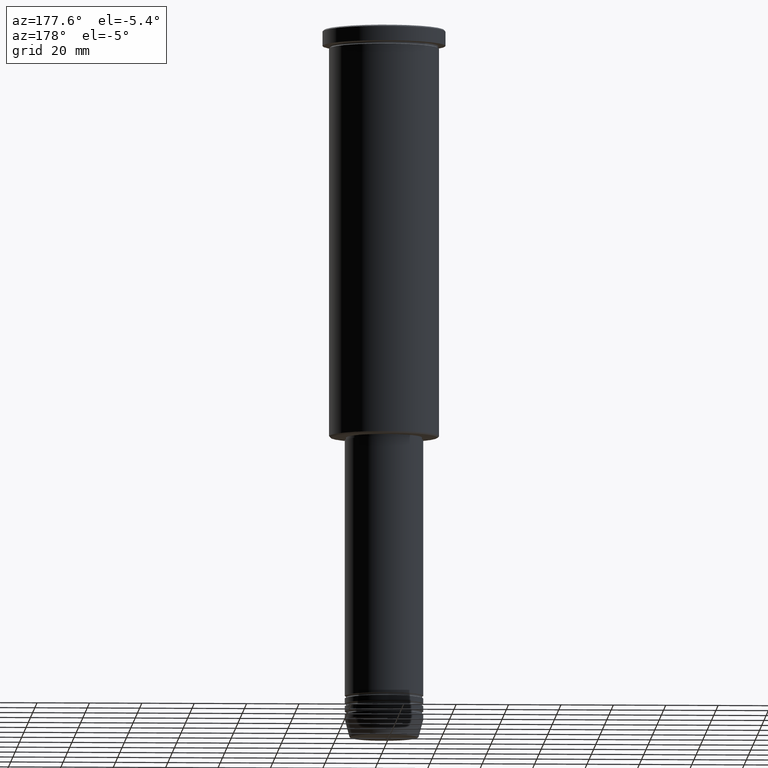
[diagram: clean part render]
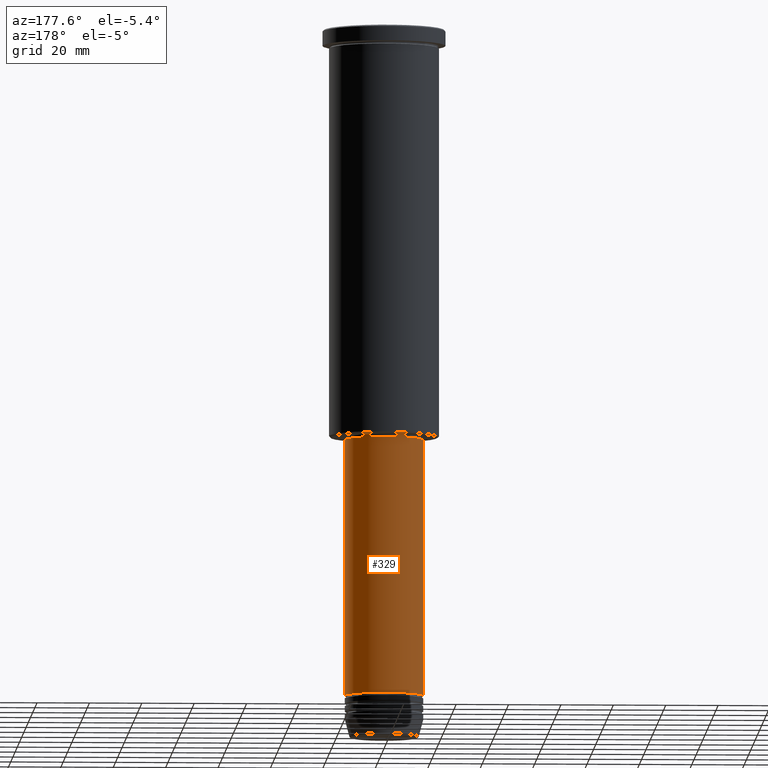
[diagram: same view with one face highlighted and labeled with its STEP entity id]
A machine part, auxiliary view. The second image highlights one B-rep face of the part: STEP entity #329.
In plain terms, the highlighted cylindrical surface (partial cylindrical patch) has radius 15 mm, axis along (-0, -0, 1).
Its self-contained STEP definition (entity closure, byte-faithful):
#17 = DIRECTION ( 'NONE',  ( -0.000000000000000000, -0.000000000000000000, 1.000000000000000000 ) ) ;
#42 = EDGE_CURVE ( 'NONE', #95, #1170, #251, .T. ) ;
#82 = EDGE_CURVE ( 'NONE', #1170, #1074, #955, .T. ) ;
#93 = DIRECTION ( 'NONE',  ( 1.000000000000000000, 0.000000000000000000, 0.000000000000000000 ) ) ;
#95 = VERTEX_POINT ( 'NONE', #274 ) ;
#156 = EDGE_CURVE ( 'NONE', #95, #519, #583, .T. ) ;
#211 = AXIS2_PLACEMENT_3D ( 'NONE', #905, #454, #830 ) ;
#251 = LINE ( 'NONE', #831, #430 ) ;
#274 = CARTESIAN_POINT ( 'NONE',  ( 15.00000000000000000, 0.000000000000000000, -255.0000000000000000 ) ) ;
#279 = ORIENTED_EDGE ( 'NONE', *, *, #42, .F. ) ;
#329 = ADVANCED_FACE ( 'NONE', ( #732 ), #738, .T. ) ;
#370 = EDGE_CURVE ( 'NONE', #519, #1074, #465, .T. ) ;
#378 = DIRECTION ( 'NONE',  ( 1.000000000000000000, 0.000000000000000000, 0.000000000000000000 ) ) ;
#411 = CARTESIAN_POINT ( 'NONE',  ( -15.00000000000000000, 1.836970198721029589E-15, -255.0000000000000000 ) ) ;
#413 = ORIENTED_EDGE ( 'NONE', *, *, #156, .T. ) ;
#430 = VECTOR ( 'NONE', #1078, 1000.000000000000000 ) ;
#454 = DIRECTION ( 'NONE',  ( -0.000000000000000000, -0.000000000000000000, 1.000000000000000000 ) ) ;
#465 = LINE ( 'NONE', #909, #804 ) ;
#519 = VERTEX_POINT ( 'NONE', #411 ) ;
#548 = CARTESIAN_POINT ( 'NONE',  ( 0.000000000000000000, 0.000000000000000000, 0.000000000000000000 ) ) ;
#583 = CIRCLE ( 'NONE', #211, 15.00000000000000000 ) ;
#721 = ORIENTED_EDGE ( 'NONE', *, *, #370, .T. ) ;
#732 = FACE_OUTER_BOUND ( 'NONE', #753, .T. ) ;
#738 = CYLINDRICAL_SURFACE ( 'NONE', #1021, 15.00000000000000000 ) ;
#751 = CARTESIAN_POINT ( 'NONE',  ( 15.00000000000000000, 0.000000000000000000, -157.0000000000000000 ) ) ;
#753 = EDGE_LOOP ( 'NONE', ( #413, #721, #1082, #279 ) ) ;
#804 = VECTOR ( 'NONE', #915, 1000.000000000000000 ) ;
#830 = DIRECTION ( 'NONE',  ( 1.000000000000000000, 0.000000000000000000, 0.000000000000000000 ) ) ;
#831 = CARTESIAN_POINT ( 'NONE',  ( 15.00000000000000000, 0.000000000000000000, 0.000000000000000000 ) ) ;
#848 = CARTESIAN_POINT ( 'NONE',  ( 0.000000000000000000, 0.000000000000000000, -157.0000000000000000 ) ) ;
#866 = AXIS2_PLACEMENT_3D ( 'NONE', #848, #17, #378 ) ;
#905 = CARTESIAN_POINT ( 'NONE',  ( 0.000000000000000000, 0.000000000000000000, -255.0000000000000000 ) ) ;
#909 = CARTESIAN_POINT ( 'NONE',  ( -15.00000000000000000, 1.836970198721029589E-15, 0.000000000000000000 ) ) ;
#915 = DIRECTION ( 'NONE',  ( -0.000000000000000000, -0.000000000000000000, 1.000000000000000000 ) ) ;
#955 = CIRCLE ( 'NONE', #866, 15.00000000000000000 ) ;
#1021 = AXIS2_PLACEMENT_3D ( 'NONE', #548, #1177, #93 ) ;
#1068 = CARTESIAN_POINT ( 'NONE',  ( -15.00000000000000000, 1.836970198721029589E-15, -157.0000000000000000 ) ) ;
#1074 = VERTEX_POINT ( 'NONE', #1068 ) ;
#1078 = DIRECTION ( 'NONE',  ( -0.000000000000000000, -0.000000000000000000, 1.000000000000000000 ) ) ;
#1082 = ORIENTED_EDGE ( 'NONE', *, *, #82, .F. ) ;
#1170 = VERTEX_POINT ( 'NONE', #751 ) ;
#1177 = DIRECTION ( 'NONE',  ( -0.000000000000000000, -0.000000000000000000, 1.000000000000000000 ) ) ;